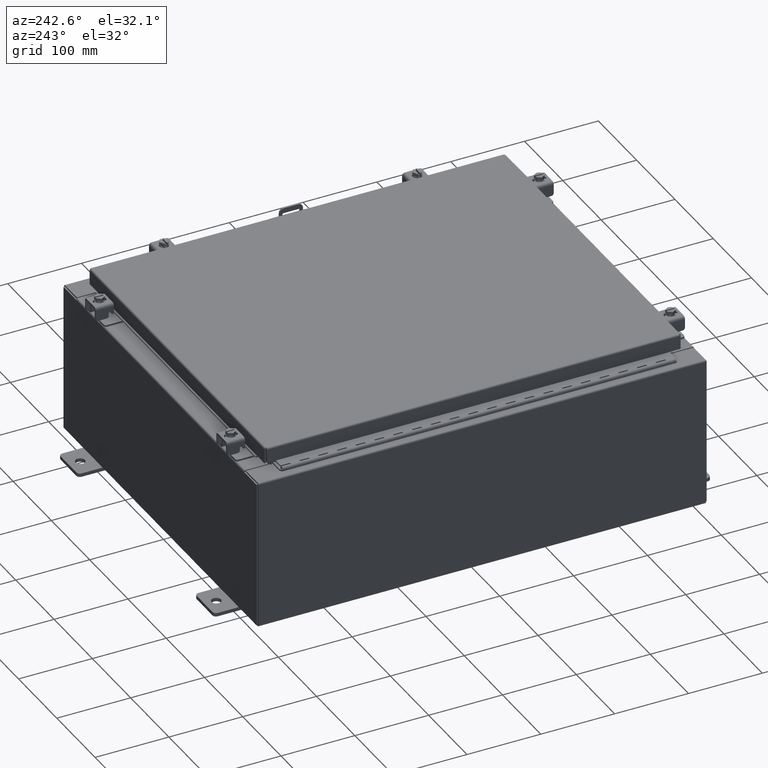
[diagram: clean part render]
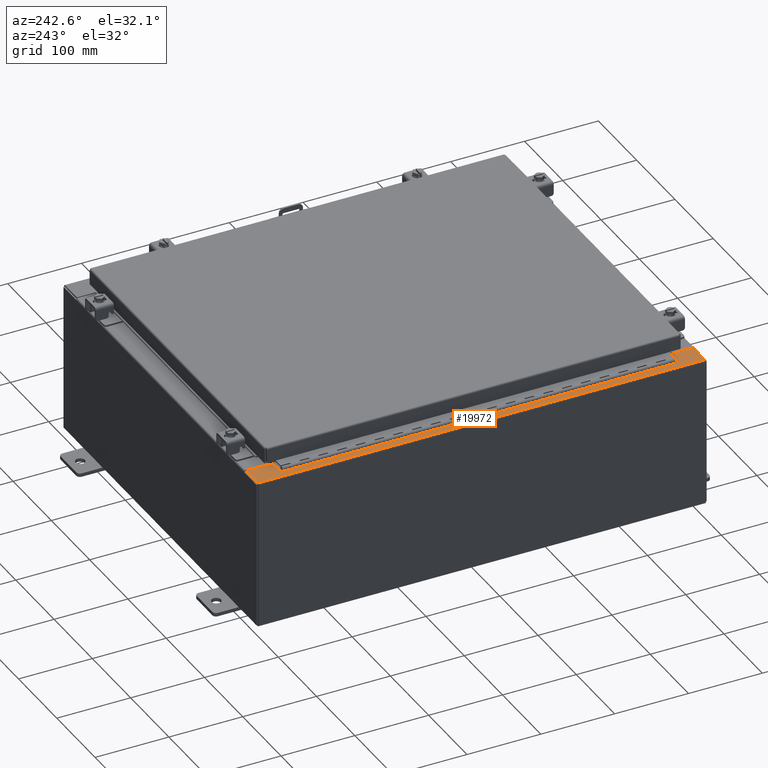
[diagram: same view with one face highlighted and labeled with its STEP entity id]
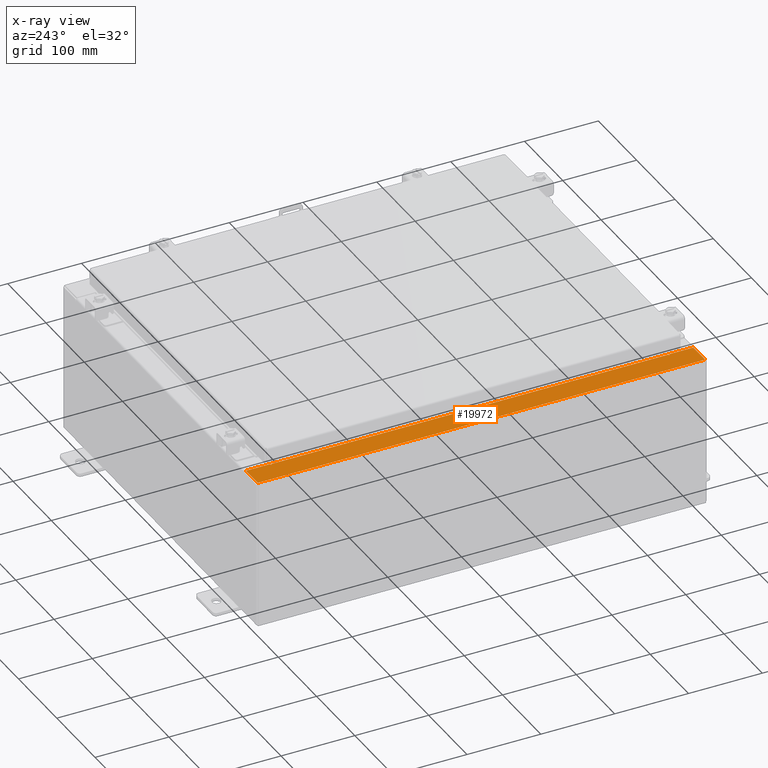
[diagram: x-ray of the same camera — body ghosted, the highlighted face saturated]
A machine part, auxiliary view. The second image highlights one B-rep face of the part: STEP entity #19972.
The next image is the same camera in x-ray: the body ghosted, the highlighted face saturated — about 0% of this face is hidden behind the body in this view.
In plain terms, the highlighted planar face has unit normal (0, 0, -1).
Its self-contained STEP definition (entity closure, byte-faithful):
#530 = ORIENTED_EDGE ( 'NONE', *, *, #3041, .F. ) ;
#926 = VECTOR ( 'NONE', #28440, 39.37007874015748100 ) ;
#1433 = EDGE_CURVE ( 'NONE', #14287, #24053, #13550, .T. ) ;
#1600 = ORIENTED_EDGE ( 'NONE', *, *, #11335, .F. ) ;
#1645 = ORIENTED_EDGE ( 'NONE', *, *, #23039, .T. ) ;
#1734 = VERTEX_POINT ( 'NONE', #28526 ) ;
#2861 = DIRECTION ( 'NONE',  ( 0.0000000000000000000, 1.000000000000000000, 0.0000000000000000000 ) ) ;
#3041 = EDGE_CURVE ( 'NONE', #24053, #4997, #8042, .T. ) ;
#3349 = CARTESIAN_POINT ( 'NONE',  ( -8.699700000000028400, 0.0000000000000000000, 7.925300000000008900 ) ) ;
#3784 = VECTOR ( 'NONE', #8205, 39.37007874015748100 ) ;
#3867 = CARTESIAN_POINT ( 'NONE',  ( -3.552501257109376000E-014, -11.92529999999998000, 7.925300000000071100 ) ) ;
#4120 = FACE_OUTER_BOUND ( 'NONE', #13554, .T. ) ;
#4387 = DIRECTION ( 'NONE',  ( 0.0000000000000000000, 1.000000000000000000, 0.0000000000000000000 ) ) ;
#4460 = CARTESIAN_POINT ( 'NONE',  ( -8.750050000000030100, -10.61242499999999300, 7.925300000000008900 ) ) ;
#4661 = ORIENTED_EDGE ( 'NONE', *, *, #8179, .F. ) ;
#4997 = VERTEX_POINT ( 'NONE', #17240 ) ;
#5051 = DIRECTION ( 'NONE',  ( -1.000000000000000000, 0.0000000000000000000, -7.132762385546378400E-015 ) ) ;
#5456 = CARTESIAN_POINT ( 'NONE',  ( -9.912300000000028500, 11.92530000000000000, 7.925300000000000000 ) ) ;
#5921 = DIRECTION ( 'NONE',  ( 7.132762385546378400E-015, 0.0000000000000000000, -1.000000000000000000 ) ) ;
#6477 = EDGE_CURVE ( 'NONE', #13346, #11418, #29374, .T. ) ;
#6828 = EDGE_CURVE ( 'NONE', #11725, #14287, #23420, .T. ) ;
#7286 = DIRECTION ( 'NONE',  ( -7.132762385546378400E-015, -0.0000000000000000000, 1.000000000000000000 ) ) ;
#7402 = CARTESIAN_POINT ( 'NONE',  ( -5.679009539018279500E-014, 0.0000000000000000000, 7.925300000000071100 ) ) ;
#7457 = VECTOR ( 'NONE', #12166, 39.37007874015748100 ) ;
#7553 = CARTESIAN_POINT ( 'NONE',  ( -8.699700000000028400, -11.92529999999999500, 7.925300000000008900 ) ) ;
#7555 = DIRECTION ( 'NONE',  ( 1.000000000000000000, 0.0000000000000000000, 0.0000000000000000000 ) ) ;
#7593 = CARTESIAN_POINT ( 'NONE',  ( -8.750050000000030100, -10.59374999999999300, 7.925300000000008900 ) ) ;
#7664 = VECTOR ( 'NONE', #27021, 39.37007874015748100 ) ;
#7991 = LINE ( 'NONE', #3867, #20711 ) ;
#8042 = LINE ( 'NONE', #22473, #31647 ) ;
#8179 = EDGE_CURVE ( 'NONE', #10807, #26225, #25664, .T. ) ;
#8205 = DIRECTION ( 'NONE',  ( -0.0000000000000000000, 1.000000000000000000, -0.0000000000000000000 ) ) ;
#8629 = LINE ( 'NONE', #24881, #7457 ) ;
#8986 = ORIENTED_EDGE ( 'NONE', *, *, #6828, .F. ) ;
#9465 = LINE ( 'NONE', #5456, #3784 ) ;
#10807 = VERTEX_POINT ( 'NONE', #21944 ) ;
#11070 = CARTESIAN_POINT ( 'NONE',  ( -8.750050000000030100, 10.59375000000000000, 7.925300000000008900 ) ) ;
#11335 = EDGE_CURVE ( 'NONE', #14976, #11725, #18189, .T. ) ;
#11418 = VERTEX_POINT ( 'NONE', #25350 ) ;
#11611 = LINE ( 'NONE', #3349, #19621 ) ;
#11725 = VERTEX_POINT ( 'NONE', #31936 ) ;
#11747 = VECTOR ( 'NONE', #4387, 39.37007874015748100 ) ;
#11896 = LINE ( 'NONE', #24981, #11747 ) ;
#12166 = DIRECTION ( 'NONE',  ( 1.000000000000000000, 0.0000000000000000000, 0.0000000000000000000 ) ) ;
#13100 = ORIENTED_EDGE ( 'NONE', *, *, #1433, .F. ) ;
#13346 = VERTEX_POINT ( 'NONE', #29533 ) ;
#13354 = EDGE_CURVE ( 'NONE', #26225, #14639, #23844, .T. ) ;
#13505 = PLANE ( 'NONE',  #26616 ) ;
#13550 = CIRCLE ( 'NONE', #26799, 0.01867499999999949400 ) ;
#13554 = EDGE_LOOP ( 'NONE', ( #4661, #27768, #29198, #17099, #1645, #27303, #530, #13100, #8986, #1600, #14341, #22166 ) ) ;
#14287 = VERTEX_POINT ( 'NONE', #7593 ) ;
#14341 = ORIENTED_EDGE ( 'NONE', *, *, #31066, .F. ) ;
#14639 = VERTEX_POINT ( 'NONE', #11070 ) ;
#14976 = VERTEX_POINT ( 'NONE', #32054 ) ;
#15061 = DIRECTION ( 'NONE',  ( 1.000000000000000000, 0.0000000000000000000, 0.0000000000000000000 ) ) ;
#17099 = ORIENTED_EDGE ( 'NONE', *, *, #29112, .F. ) ;
#17240 = CARTESIAN_POINT ( 'NONE',  ( -8.699700000000028400, -10.63109999999999300, 7.925300000000008900 ) ) ;
#17789 = VECTOR ( 'NONE', #28041, 39.37007874015748100 ) ;
#18189 = LINE ( 'NONE', #30499, #926 ) ;
#19621 = VECTOR ( 'NONE', #2861, 39.37007874015748100 ) ;
#19972 = ADVANCED_FACE ( 'NONE', ( #4120 ), #13505, .F. ) ;
#20602 = DIRECTION ( 'NONE',  ( 1.000000000000000000, 1.783190596386595000E-015, 7.132762385546378400E-015 ) ) ;
#20711 = VECTOR ( 'NONE', #20602, 39.37007874015748100 ) ;
#21089 = AXIS2_PLACEMENT_3D ( 'NONE', #26625, #26306, #25929 ) ;
#21944 = CARTESIAN_POINT ( 'NONE',  ( -8.699700000000028400, 10.63110000000000200, 7.925300000000008900 ) ) ;
#22166 = ORIENTED_EDGE ( 'NONE', *, *, #13354, .F. ) ;
#22473 = CARTESIAN_POINT ( 'NONE',  ( -8.750050000000030100, -10.63109999999999300, 7.925300000000008900 ) ) ;
#23039 = EDGE_CURVE ( 'NONE', #1734, #32229, #7991, .T. ) ;
#23379 = DIRECTION ( 'NONE',  ( -1.000000000000000000, 0.0000000000000000000, -7.132762385546378400E-015 ) ) ;
#23420 = LINE ( 'NONE', #25224, #7664 ) ;
#23844 = CIRCLE ( 'NONE', #21089, 0.01867499999999949400 ) ;
#23947 = CARTESIAN_POINT ( 'NONE',  ( -5.679009539018279500E-014, 11.92530000000000000, 7.925300000000071100 ) ) ;
#24053 = VERTEX_POINT ( 'NONE', #30106 ) ;
#24881 = CARTESIAN_POINT ( 'NONE',  ( -8.750050000000030100, 10.59375000000000000, 7.925300000000008900 ) ) ;
#24981 = CARTESIAN_POINT ( 'NONE',  ( -8.699700000000028400, 0.0000000000000000000, 7.925300000000008900 ) ) ;
#25224 = CARTESIAN_POINT ( 'NONE',  ( -8.712700000000030100, -10.59374999999999300, 7.925300000000008900 ) ) ;
#25350 = CARTESIAN_POINT ( 'NONE',  ( -9.912300000000028500, 11.92530000000000000, 7.925300000000000000 ) ) ;
#25542 = VECTOR ( 'NONE', #23379, 39.37007874015748100 ) ;
#25664 = LINE ( 'NONE', #29236, #17789 ) ;
#25929 = DIRECTION ( 'NONE',  ( 1.000000000000000000, 0.0000000000000000000, 0.0000000000000000000 ) ) ;
#26225 = VERTEX_POINT ( 'NONE', #29153 ) ;
#26306 = DIRECTION ( 'NONE',  ( -7.132762385546378400E-015, -0.0000000000000000000, 1.000000000000000000 ) ) ;
#26616 = AXIS2_PLACEMENT_3D ( 'NONE', #7402, #5921, #5051 ) ;
#26625 = CARTESIAN_POINT ( 'NONE',  ( -8.750050000000030100, 10.61242500000000000, 7.925300000000008900 ) ) ;
#26799 = AXIS2_PLACEMENT_3D ( 'NONE', #4460, #7286, #7555 ) ;
#27021 = DIRECTION ( 'NONE',  ( -1.000000000000000000, 0.0000000000000000000, 0.0000000000000000000 ) ) ;
#27303 = ORIENTED_EDGE ( 'NONE', *, *, #31818, .T. ) ;
#27768 = ORIENTED_EDGE ( 'NONE', *, *, #30738, .T. ) ;
#28041 = DIRECTION ( 'NONE',  ( -1.000000000000000000, -4.340572780399910900E-014, 0.0000000000000000000 ) ) ;
#28440 = DIRECTION ( 'NONE',  ( -0.0000000000000000000, -1.000000000000000000, -0.0000000000000000000 ) ) ;
#28526 = CARTESIAN_POINT ( 'NONE',  ( -9.912300000000028500, -11.92529999999999600, 7.925300000000000000 ) ) ;
#29112 = EDGE_CURVE ( 'NONE', #1734, #11418, #9465, .T. ) ;
#29153 = CARTESIAN_POINT ( 'NONE',  ( -8.750050000000030100, 10.63109999999999800, 7.925300000000008900 ) ) ;
#29198 = ORIENTED_EDGE ( 'NONE', *, *, #6477, .T. ) ;
#29236 = CARTESIAN_POINT ( 'NONE',  ( -8.699700000000028400, 10.63110000000000200, 7.925300000000008900 ) ) ;
#29374 = LINE ( 'NONE', #23947, #25542 ) ;
#29533 = CARTESIAN_POINT ( 'NONE',  ( -8.699700000000028400, 11.92530000000000000, 7.925300000000008900 ) ) ;
#30106 = CARTESIAN_POINT ( 'NONE',  ( -8.750050000000030100, -10.63109999999999300, 7.925300000000008900 ) ) ;
#30499 = CARTESIAN_POINT ( 'NONE',  ( -8.712700000000030100, 10.59375000000000200, 7.925300000000008900 ) ) ;
#30738 = EDGE_CURVE ( 'NONE', #10807, #13346, #11896, .T. ) ;
#31066 = EDGE_CURVE ( 'NONE', #14639, #14976, #8629, .T. ) ;
#31647 = VECTOR ( 'NONE', #15061, 39.37007874015748100 ) ;
#31818 = EDGE_CURVE ( 'NONE', #32229, #4997, #11611, .T. ) ;
#31936 = CARTESIAN_POINT ( 'NONE',  ( -8.712700000000030100, -10.59374999999999300, 7.925300000000008900 ) ) ;
#32054 = CARTESIAN_POINT ( 'NONE',  ( -8.712700000000030100, 10.59375000000000000, 7.925300000000008900 ) ) ;
#32229 = VERTEX_POINT ( 'NONE', #7553 ) ;